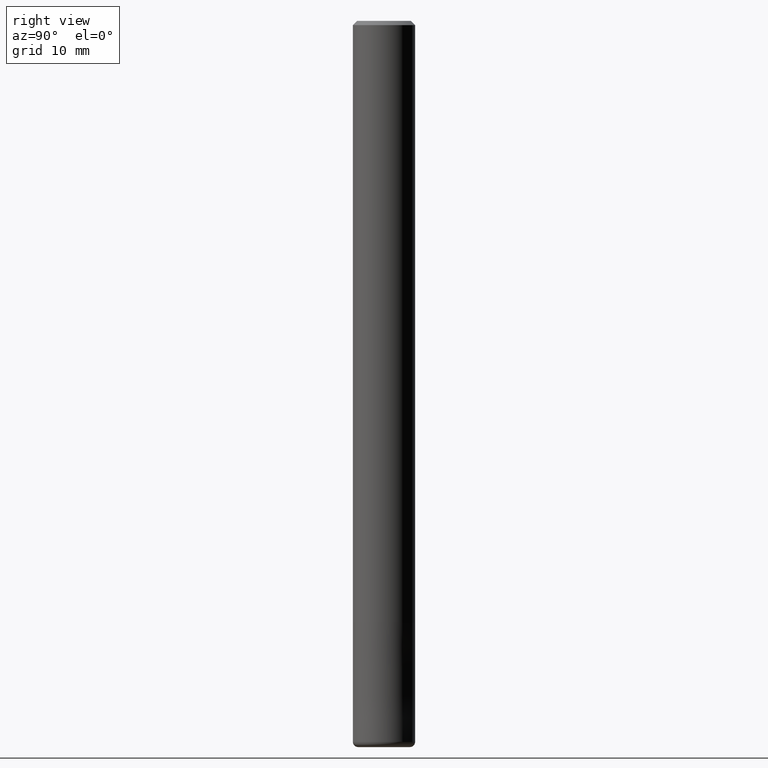
[diagram: clean part render]
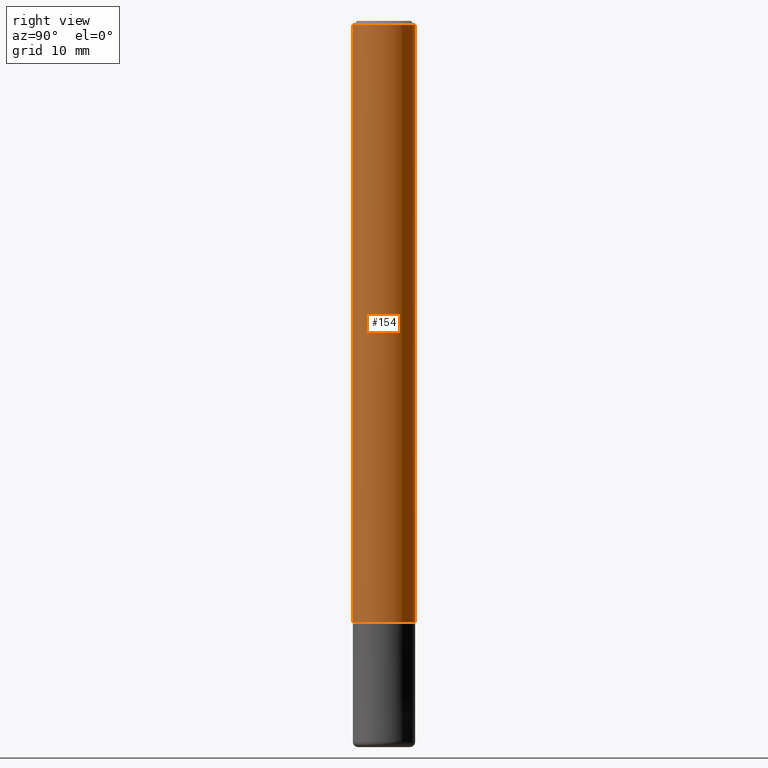
[diagram: same view with one face highlighted and labeled with its STEP entity id]
A machine part, right view. The second image highlights one B-rep face of the part: STEP entity #154.
In plain terms, the highlighted cylindrical surface (edge-blend (fillet) strip) has radius 3 mm, axis along (-0, -0, 1).
Its self-contained STEP definition (entity closure, byte-faithful):
#124=VERTEX_POINT('',#291);
#142=VERTEX_POINT('',#310);
#144=EDGE_CURVE('',#124,#208,#312,.T.);
#154=ADVANCED_FACE('',(#323),#324,.T.);
#178=VERTEX_POINT('',#351);
#182=EDGE_CURVE('',#178,#142,#356,.T.);
#208=VERTEX_POINT('',#383);
#212=EDGE_CURVE('',#208,#178,#389,.T.);
#236=EDGE_CURVE('',#124,#142,#417,.T.);
#291=CARTESIAN_POINT('',(0.0,3.0,-0.399999999999999));
#310=CARTESIAN_POINT('',(3.67381906146713E-016,-3.0,-0.399999999999999));
#312=LINE('',#496,#497);
#323=FACE_OUTER_BOUND('',#513,.T.);
#324=CYLINDRICAL_SURFACE('',#514,3.0);
#351=CARTESIAN_POINT('',(3.67381906146713E-016,-3.0,-58.0));
#356=LINE('',#555,#556);
#383=CARTESIAN_POINT('',(0.0,3.0,-58.0));
#389=CIRCLE('',#592,3.0);
#417=CIRCLE('',#628,3.0);
#496=CARTESIAN_POINT('',(-3.67381906146713E-016,3.0,-29.2));
#497=VECTOR('',#707,1.0);
#513=EDGE_LOOP('',(#722,#723,#724,#725));
#514=AXIS2_PLACEMENT_3D('',#726,#727,#728);
#555=CARTESIAN_POINT('',(3.67381906146713E-016,-3.0,-29.2));
#556=VECTOR('',#773,1.0);
#592=AXIS2_PLACEMENT_3D('',#798,#799,#800);
#628=AXIS2_PLACEMENT_3D('',#841,#842,#843);
#707=DIRECTION('',(0.0,0.0,-1.0));
#722=ORIENTED_EDGE('',*,*,#144,.F.);
#723=ORIENTED_EDGE('',*,*,#236,.T.);
#724=ORIENTED_EDGE('',*,*,#182,.F.);
#725=ORIENTED_EDGE('',*,*,#212,.F.);
#726=CARTESIAN_POINT('',(0.0,0.0,-29.2));
#727=DIRECTION('',(-0.0,-0.0,1.0));
#728=DIRECTION('',(0.0,1.0,0.0));
#773=DIRECTION('',(-0.0,-0.0,1.0));
#798=CARTESIAN_POINT('',(0.0,0.0,-58.0));
#799=DIRECTION('',(0.0,0.0,-1.0));
#800=DIRECTION('',(0.0,1.0,0.0));
#841=CARTESIAN_POINT('',(0.0,0.0,-0.399999999999999));
#842=DIRECTION('',(0.0,0.0,-1.0));
#843=DIRECTION('',(0.0,1.0,0.0));